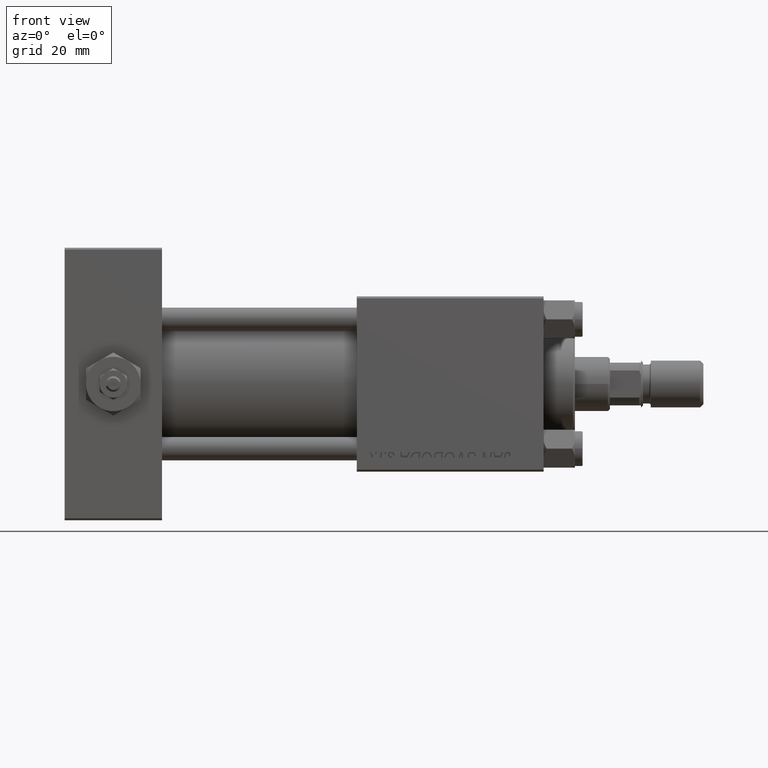
[diagram: clean part render]
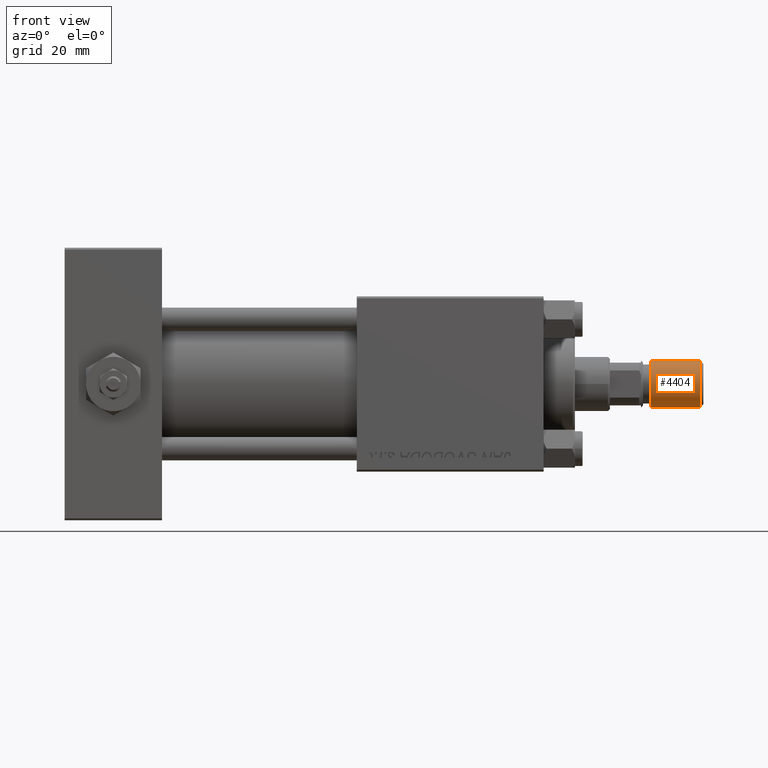
[diagram: same view with one face highlighted and labeled with its STEP entity id]
A machine part, front view. The second image highlights one B-rep face of the part: STEP entity #4404.
In plain terms, the highlighted cylindrical surface (edge-blend (fillet) strip) has radius 6 mm, axis along (1, -0, -0).
Its self-contained STEP definition (entity closure, byte-faithful):
#2208 = VERTEX_POINT ( 'NONE', #31130 ) ;
#3878 = CARTESIAN_POINT ( 'NONE',  ( 6.000000000000000888, 7.347880794884120722E-16, 13.50000000000000000 ) ) ;
#3909 = ORIENTED_EDGE ( 'NONE', *, *, #7415, .T. ) ;
#4402 = AXIS2_PLACEMENT_3D ( 'NONE', #51564, #28300, #31483 ) ;
#4404 = ADVANCED_FACE ( 'NONE', ( #19687 ), #35756, .T. ) ;
#7415 = EDGE_CURVE ( 'NONE', #2208, #27081, #33918, .T. ) ;
#7561 = CARTESIAN_POINT ( 'NONE',  ( 0.000000000000000000, 0.000000000000000000, 13.50000000000000000 ) ) ;
#12580 = DIRECTION ( 'NONE',  ( 1.000000000000000000, 0.000000000000000000, 0.000000000000000000 ) ) ;
#13093 = CARTESIAN_POINT ( 'NONE',  ( 0.000000000000000000, 0.000000000000000000, 0.8000000000000055955 ) ) ;
#18988 = EDGE_CURVE ( 'NONE', #2208, #25541, #49901, .T. ) ;
#19687 = FACE_OUTER_BOUND ( 'NONE', #31258, .T. ) ;
#19710 = DIRECTION ( 'NONE',  ( -0.000000000000000000, -0.000000000000000000, -1.000000000000000000 ) ) ;
#19940 = DIRECTION ( 'NONE',  ( -0.000000000000000000, -0.000000000000000000, -1.000000000000000000 ) ) ;
#20235 = ORIENTED_EDGE ( 'NONE', *, *, #51717, .F. ) ;
#25541 = VERTEX_POINT ( 'NONE', #40671 ) ;
#26356 = EDGE_CURVE ( 'NONE', #27081, #49924, #26570, .T. ) ;
#26570 = CIRCLE ( 'NONE', #36631, 6.000000000000000888 ) ;
#27081 = VERTEX_POINT ( 'NONE', #51749 ) ;
#27822 = VECTOR ( 'NONE', #19710, 1000.000000000000000 ) ;
#28300 = DIRECTION ( 'NONE',  ( 0.000000000000000000, 0.000000000000000000, 1.000000000000000000 ) ) ;
#31130 = CARTESIAN_POINT ( 'NONE',  ( -6.000000000000000888, 0.000000000000000000, 13.50000000000000000 ) ) ;
#31258 = EDGE_LOOP ( 'NONE', ( #20235, #31893, #3909, #50391 ) ) ;
#31483 = DIRECTION ( 'NONE',  ( 1.000000000000000000, 0.000000000000000000, 0.000000000000000000 ) ) ;
#31893 = ORIENTED_EDGE ( 'NONE', *, *, #18988, .F. ) ;
#33918 = LINE ( 'NONE', #46072, #48789 ) ;
#35756 = CYLINDRICAL_SURFACE ( 'NONE', #36020, 6.000000000000000888 ) ;
#36020 = AXIS2_PLACEMENT_3D ( 'NONE', #7561, #19940, #43175 ) ;
#36554 = LINE ( 'NONE', #3878, #27822 ) ;
#36631 = AXIS2_PLACEMENT_3D ( 'NONE', #13093, #48986, #12580 ) ;
#40671 = CARTESIAN_POINT ( 'NONE',  ( 6.000000000000000888, 7.347880794884120722E-16, 13.50000000000000000 ) ) ;
#41214 = CARTESIAN_POINT ( 'NONE',  ( 6.000000000000000888, 7.347880794884120722E-16, 0.8000000000000055955 ) ) ;
#43175 = DIRECTION ( 'NONE',  ( -1.000000000000000000, 0.000000000000000000, 0.000000000000000000 ) ) ;
#46072 = CARTESIAN_POINT ( 'NONE',  ( -6.000000000000000888, 0.000000000000000000, 13.50000000000000000 ) ) ;
#48789 = VECTOR ( 'NONE', #50289, 1000.000000000000000 ) ;
#48986 = DIRECTION ( 'NONE',  ( -0.000000000000000000, -0.000000000000000000, 1.000000000000000000 ) ) ;
#49901 = CIRCLE ( 'NONE', #4402, 6.000000000000000888 ) ;
#49924 = VERTEX_POINT ( 'NONE', #41214 ) ;
#50289 = DIRECTION ( 'NONE',  ( -0.000000000000000000, -0.000000000000000000, -1.000000000000000000 ) ) ;
#50391 = ORIENTED_EDGE ( 'NONE', *, *, #26356, .T. ) ;
#51564 = CARTESIAN_POINT ( 'NONE',  ( 0.000000000000000000, 0.000000000000000000, 13.50000000000000000 ) ) ;
#51717 = EDGE_CURVE ( 'NONE', #25541, #49924, #36554, .T. ) ;
#51749 = CARTESIAN_POINT ( 'NONE',  ( -6.000000000000000888, 0.000000000000000000, 0.8000000000000055955 ) ) ;